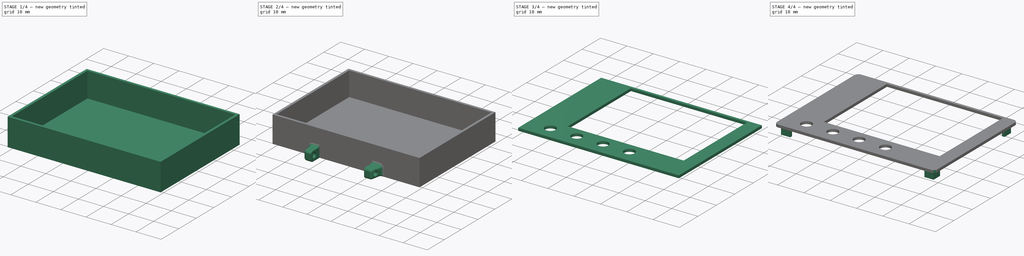
[diagram: build sequence overview — one tinted view per stage of 4, left to right]
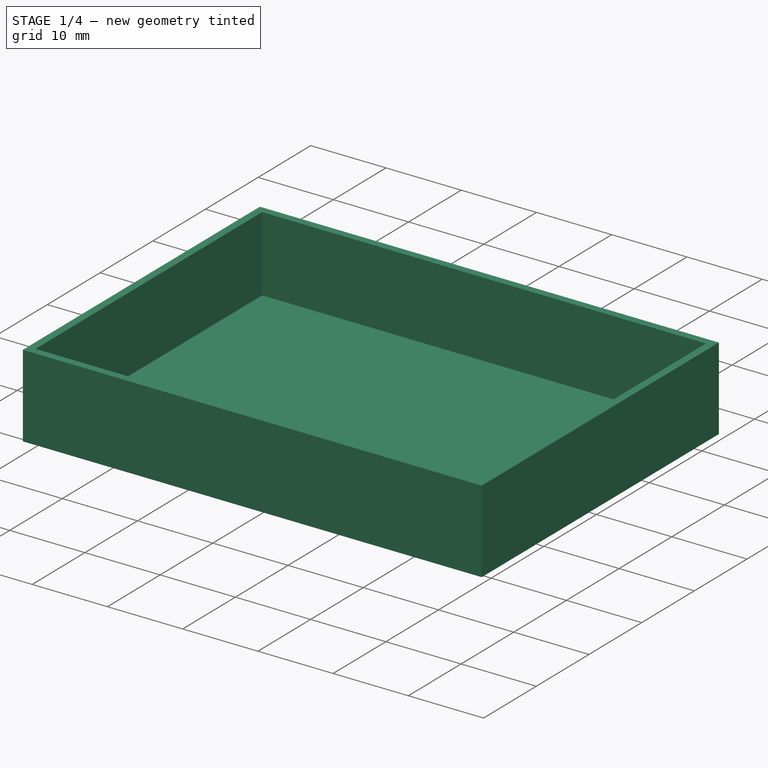
[diagram: stage 1 of 4 — iso view after this stage's code; geometry added in this stage tinted green]
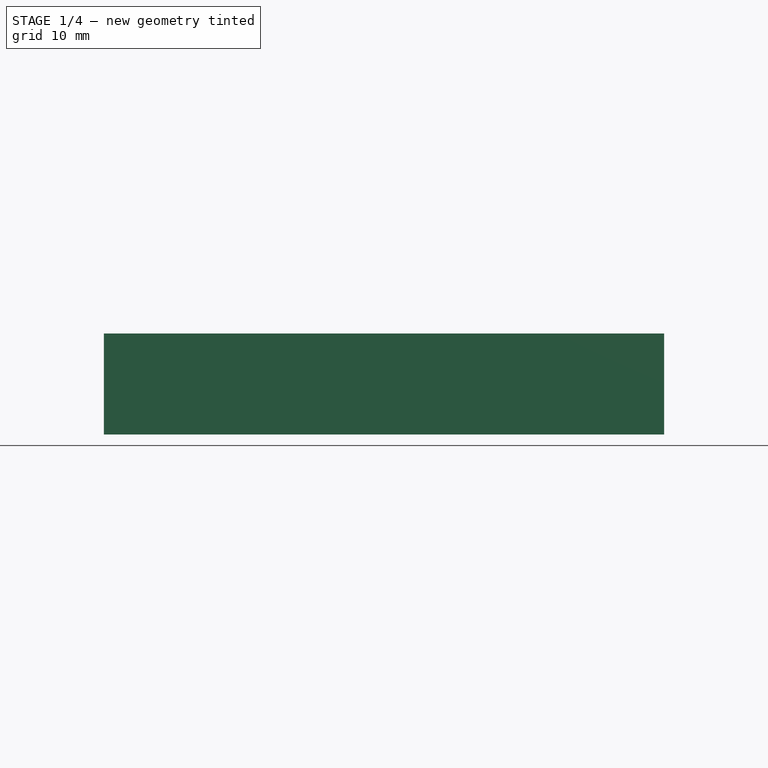
[diagram: stage 1 of 4 — front view after this stage's code; geometry added in this stage tinted green]
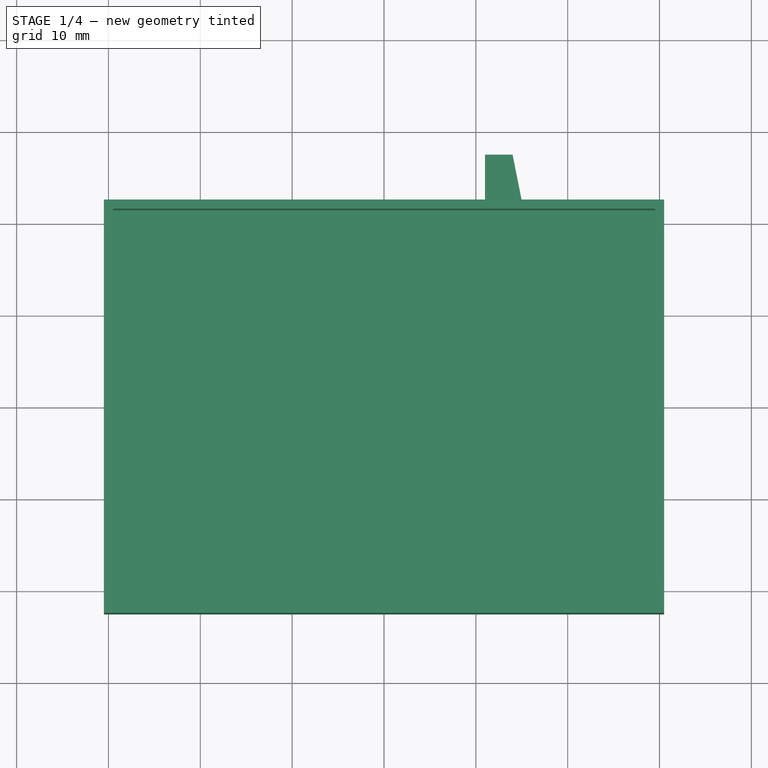
[diagram: stage 1 of 4 — top view after this stage's code; geometry added in this stage tinted green]
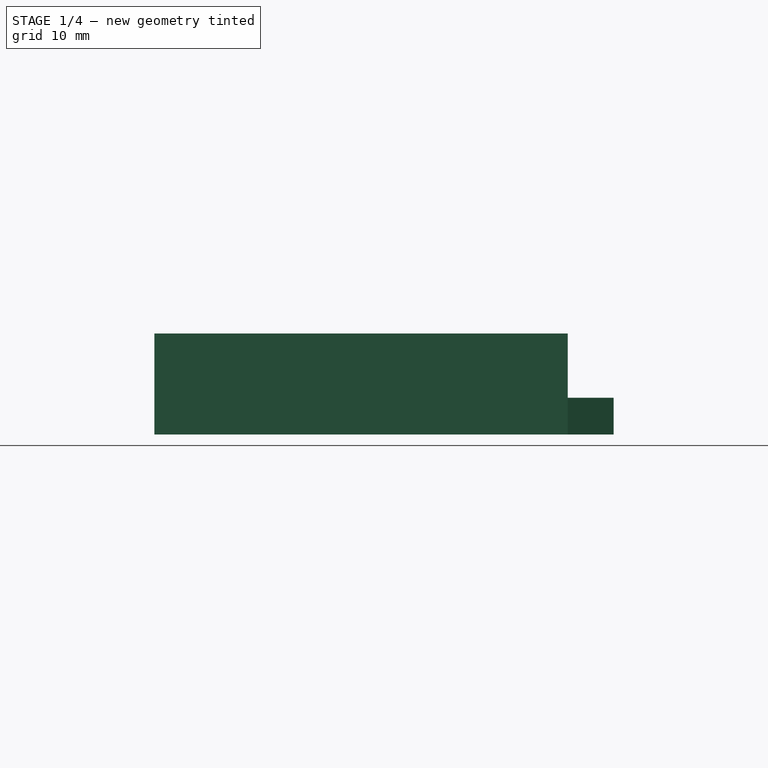
[diagram: stage 1 of 4 — right view after this stage's code; geometry added in this stage tinted green]
FCSTD DOCUMENT  (FreeCAD 1.1RUnknown)
Label: handy
License: All rights reserved
LicenseURL: https://en.wikipedia.org/wiki/All_rights_reserved
objects: Sketcher::SketchObject×5, PartDesign::Pad×5, PartDesign::Mirrored×4, PartDesign::Fillet×3, PartDesign::Pocket×3, App::Point×2, PartDesign::MultiTransform×2, PartDesign::Body×2, PartDesign::SubShapeBinder×1
note: 58 computed .brp shape members not serialized (recipe doc carries the construction recipe); baked Part::Feature solids carry a one-line shape summary decoded from their .brp

FEATURE [App::Point] Origin006
  Role = Origin
FEATURE [Sketcher::SketchObject] Sketch025
  ArcFitTolerance = 1e-06
  AttachmentSupport = -> [Origin005]
  ExternalTypes = [0]
  FullyConstrained = true
  MakeInternals = true
  MapMode = 5
  _ExternalGeoVersion = 1
  sketch-geometry (14):
    g0: LineSegment StartX=-29.5 StartY=21.5 StartZ=0 EndX=-29.5 EndY=-21.5 EndZ=0
    g1: LineSegment StartX=-29.5 StartY=-21.5 StartZ=0 EndX=29.5 EndY=-21.5 EndZ=0
    g2: LineSegment StartX=29.5 StartY=-21.5 StartZ=0 EndX=29.5 EndY=21.5 EndZ=0
    g3: LineSegment StartX=29.5 StartY=21.5 StartZ=0 EndX=-29.5 EndY=21.5 EndZ=0
    g4: LineSegment StartX=-30.5 StartY=-22.5 StartZ=0 EndX=30.5 EndY=-22.5 EndZ=0
    g5: LineSegment StartX=30.5 StartY=-22.5 StartZ=0 EndX=30.5 EndY=22.5 EndZ=0
    g6: LineSegment StartX=-30.5 StartY=22.5 StartZ=0 EndX=-30.5 EndY=-22.5 EndZ=0
    g7: LineSegment [constr] StartX=29.5 StartY=21.5 StartZ=0 EndX=30.5 EndY=21.5 EndZ=0
    g8: LineSegment [constr] StartX=29.5 StartY=21.5 StartZ=0 EndX=29.5 EndY=22.5 EndZ=0
    g9: LineSegment StartX=11 StartY=27.5 StartZ=0 EndX=11 EndY=22.5 EndZ=0
    g10: LineSegment StartX=15 StartY=22.5 StartZ=0 EndX=14 EndY=27.5 EndZ=0
    g11: LineSegment StartX=-30.5 StartY=22.5 StartZ=0 EndX=30.5 EndY=22.5 EndZ=0
    g12: LineSegment StartX=14 StartY=27.5 StartZ=0 EndX=11 EndY=27.5 EndZ=0
    g13: GeomPoint [constr] X=0 Y=0 Z=0
  constraints (39):
    c: Coincident(g1,g2)
    c: Coincident(g2,g3)
    c: Coincident(g3,g0)
    c: Vertical(g0)
    c: Vertical(g2)
    c: Horizontal(g1)
    c: Horizontal(g3)
    c: DistanceX(g1,g1) = 59
    c: DistanceY(g0,g0) = 43
    c: Coincident(g4,g5)
    c: Coincident(g6,g4)
    c: Horizontal(g4)
    c: Vertical(g5)
    c: Vertical(g6)
    c: Coincident(g7,g2)
    c: PointOnObject(g7,g5)
    c: Horizontal(g7)
    c: Coincident(g8,g2)
    c: Vertical(g8)
    c: Equal(g7,g8)
    c: Distance(g7,g7) = 1
    c: Vertical(g9)
    c: Coincident(g11,g6)
    c: Coincident(g11,g5)
    c: Horizontal(g11)
    c: PointOnObject(g8,g11)
    c: PointOnObject(g9,g11)
    c: PointOnObject(g10,g11)
    c: Coincident(g12,g10)
    c: Coincident(g12,g9)
    c: Horizontal(g12)
    c: Distance(g12,g12) = 3
    c: Distance(g10,g9) = 4
    c: Distance(g9,g9) = 5
    c: Symmetric(g0,g1,g13)
    c: Symmetric(g5,g4,g13)
    c: Coincident(g0,g1)
    c: Coincident(g-1,g13)
    c: Distance(g9,g-2) = 11
FEATURE [PartDesign::Pad] Pad015  label="plate"
  Direction = (0,0,1)
  Length = 1
  Length2 = 10
  Profile = -> Sketch025 [InternalFace3]
  ReferenceAxis = -> Sketch025 [N_Axis]
  Refine = true
  SideType = 0
  Suppressed = false
  Type = 0
  Type2 = 0
FEATURE [PartDesign::Pad] Pad016  label="walls"
  BaseFeature = -> Pad015
  Direction = (0,0,1)
  Length = 11
  Length2 = 10
  Profile = -> Sketch025 [edge1,InternalFace1]
  ReferenceAxis = -> Sketch025 [N_Axis]
  Refine = true
  SideType = 0
  Suppressed = false
  Type = 0
  Type2 = 0
FEATURE [PartDesign::Pad] Pad017  label="StrapHand"
  BaseFeature = -> Pad016
  Direction = (0,0,1)
  Length = 4
  Length2 = 10
  Profile = -> Sketch025 [InternalFace2]
  ReferenceAxis = -> Sketch025 [N_Axis]
  Refine = true
  SideType = 0
  Suppressed = false
  Type = 0
  Type2 = 0
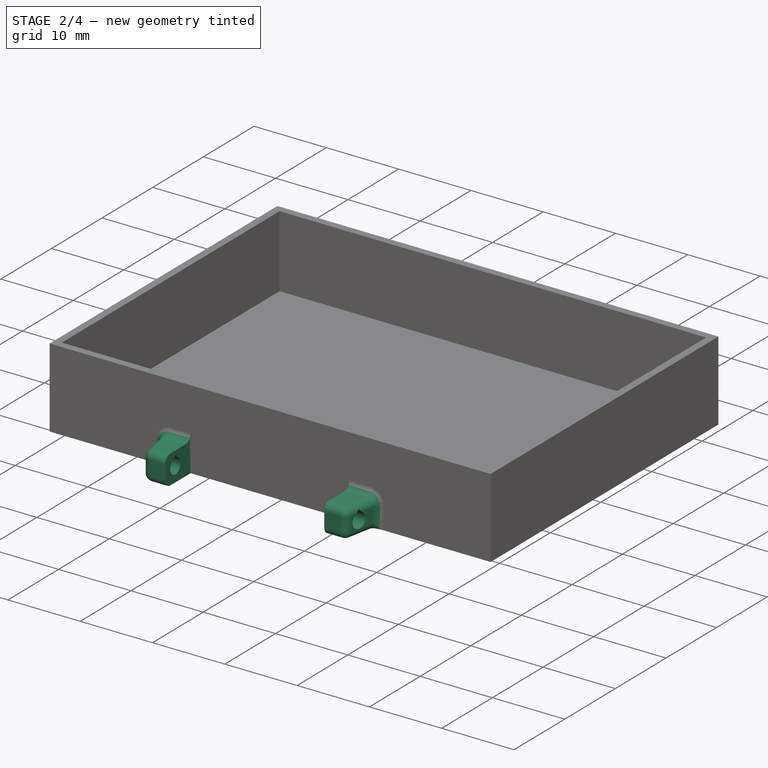
[diagram: stage 2 of 4 — iso view after this stage's code; geometry added in this stage tinted green]
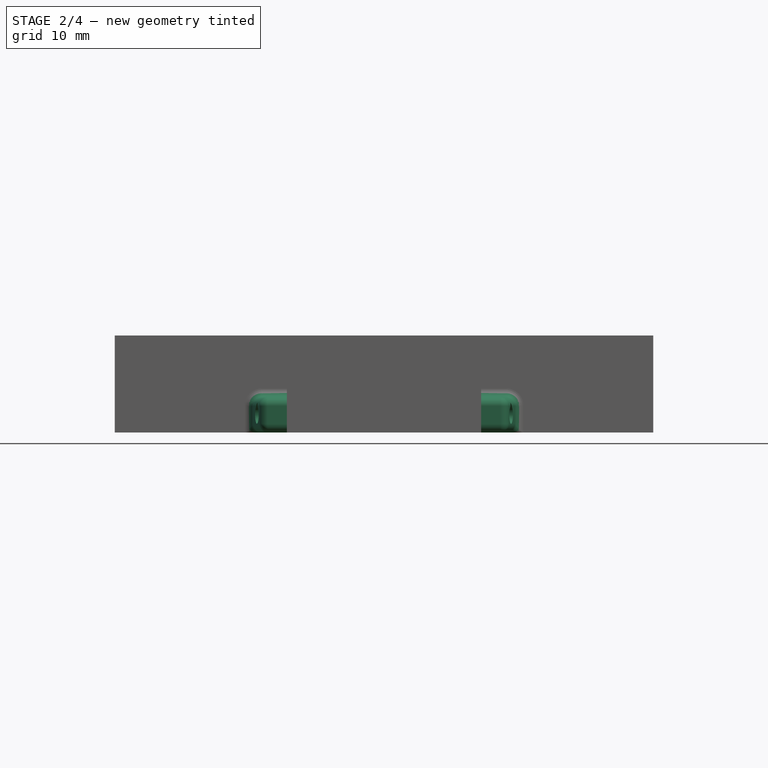
[diagram: stage 2 of 4 — front view after this stage's code; geometry added in this stage tinted green]
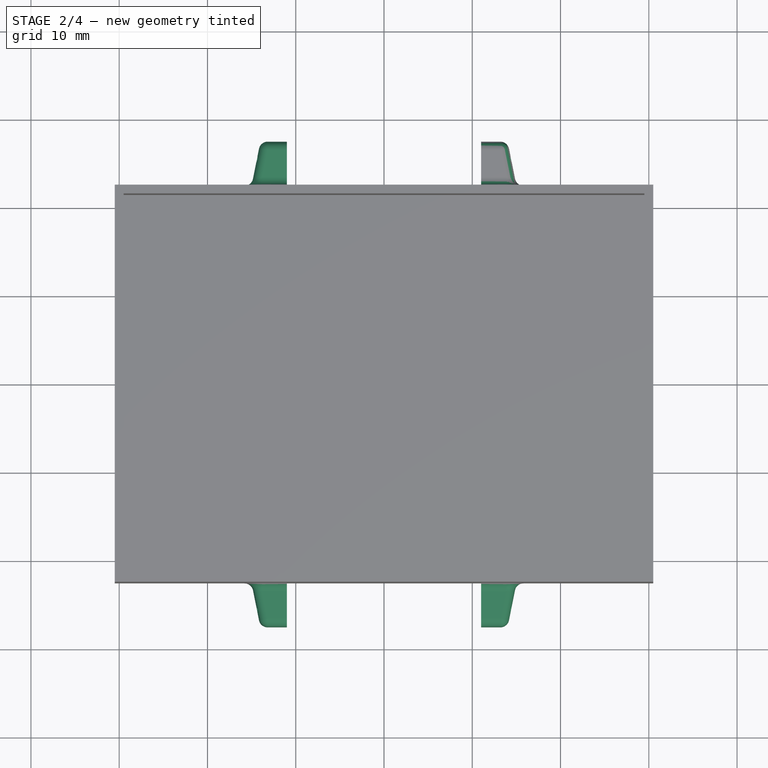
[diagram: stage 2 of 4 — top view after this stage's code; geometry added in this stage tinted green]
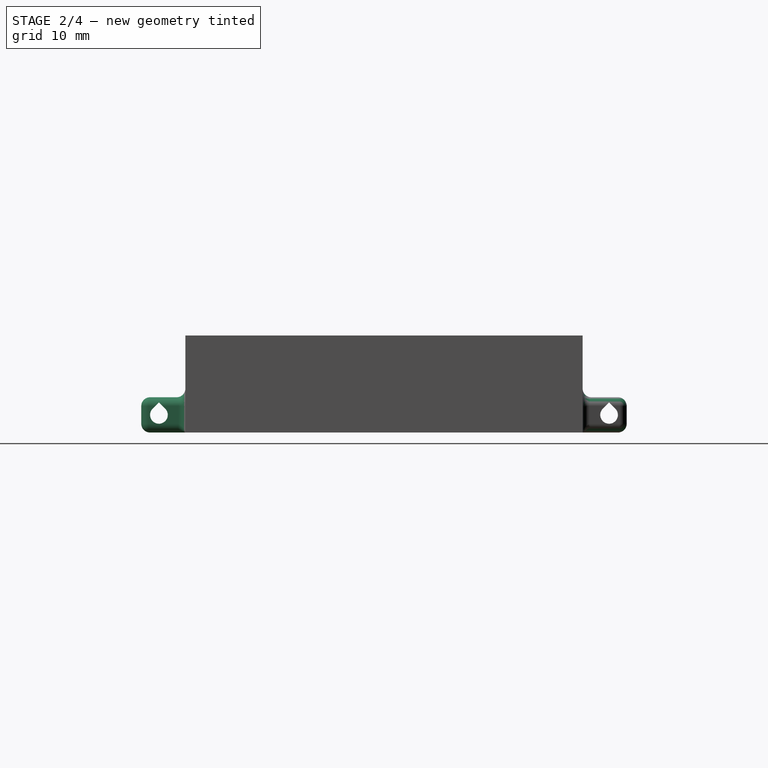
[diagram: stage 2 of 4 — right view after this stage's code; geometry added in this stage tinted green]
FEATURE [PartDesign::Fillet] Fillet006
  Base = -> Pad017 [Edge7,Edge6,Edge24,Edge25,Edge23,Edge26,Edge36]
  BaseFeature = -> Pad017
  Radius = 1
  Refine = true
  SupportTransform = false
  Suppressed = false
  UseAllEdges = false
FEATURE [Sketcher::SketchObject] Sketch026
  ArcFitTolerance = 1e-06
  AttachmentSupport = -> [Pad017]
  ExternalGeometry = -> [Pad017]
  ExternalTypes = [0]
  FullyConstrained = true
  MakeInternals = true
  MapMode = 5
  Placement = pos=(11,0,0) rot=(0.57735,-0.57735,-0.57735;2.0944rad)
  _ExternalGeoVersion = 1
  sketch-geometry (5):
    g0: LineSegment [constr] StartX=-25.5 StartY=2 StartZ=0 EndX=-25.5 EndY=4 EndZ=0
    g1: ArcOfCircle CenterX=-25.5 CenterY=2 CenterZ=0 NormalX=0 NormalY=0 NormalZ=1 AngleXU=0 Radius=1 StartAngle=2.35619 EndAngle=7.06858
    g2: LineSegment StartX=-26.2071 StartY=2.70711 StartZ=0 EndX=-25.5 EndY=3.41421 EndZ=0
    g3: LineSegment StartX=-25.5 StartY=3.41421 StartZ=0 EndX=-24.7929 EndY=2.70711 EndZ=0
    g4: LineSegment [constr] StartX=-27.5 StartY=2 StartZ=0 EndX=-25.5 EndY=2 EndZ=0
  constraints (13):
    c: Vertical(g0)
    c: PointOnObject(g0,g-6)
    c: Coincident(g1,g0)
    c: Coincident(g3,g2)
    c: Tangent(g1,g3) = 1.5708
    c: Tangent(g1,g2) = 1.5708
    c: PointOnObject(g2,g0)
    c: Radius(g1) = 1
    c: Perpendicular(g2,g3)
    c: Symmetric(g-3,g-3,g4)
    c: Coincident(g4,g0)
    c: Horizontal(g4)
    c: Equal(g4,g0)
FEATURE [PartDesign::Pocket] Pocket005  label="StrapHole"
  BaseFeature = -> Fillet006
  Direction = (1,0,0)
  Length = 5
  Length2 = 5
  Profile = -> Sketch026
  ReferenceAxis = -> Sketch026 [N_Axis]
  Refine = true
  SideType = 0
  Suppressed = false
  Type = 2
  Type2 = 0
FEATURE [PartDesign::Mirrored] Mirror
  MirrorPlane = -> Sketch025 [V_Axis]
  Refine = true
  Suppressed = false
  TransformMode = 0
FEATURE [PartDesign::Mirrored] Mirror001
  MirrorPlane = -> Sketch025 [H_Axis]
  Refine = true
  Suppressed = false
  TransformMode = 0
FEATURE [PartDesign::MultiTransform] MultiTransform001  label="StrapHands001"
  BaseFeature = -> Pocket005
  Originals = -> [Pad017,Fillet006,Pocket005]
  Refine = true
  Suppressed = false
  TransformMode = 0
  Transformations = -> [Mirror,Mirror001]
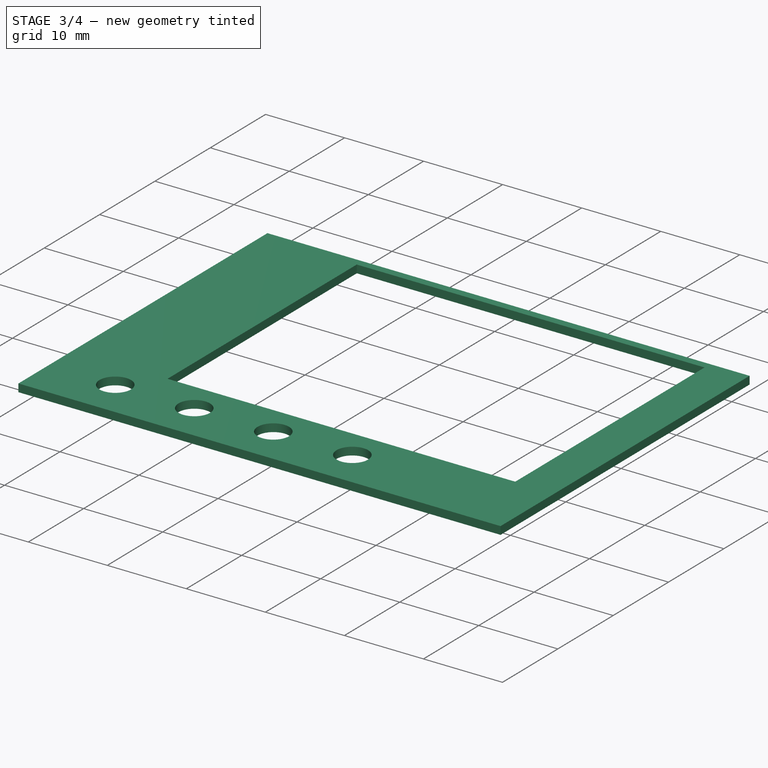
[diagram: stage 3 of 4 — iso view after this stage's code; geometry added in this stage tinted green]
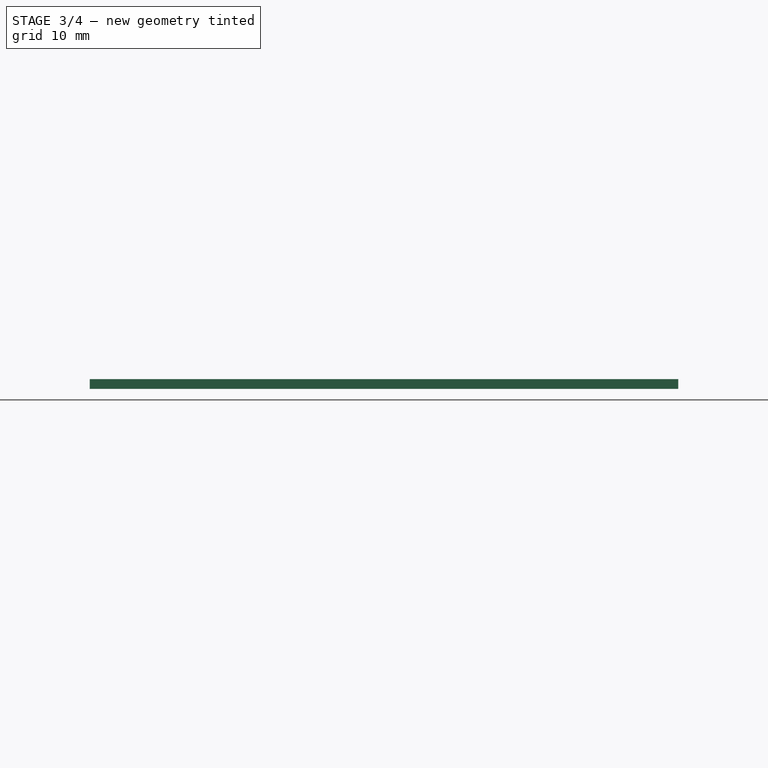
[diagram: stage 3 of 4 — front view after this stage's code; geometry added in this stage tinted green]
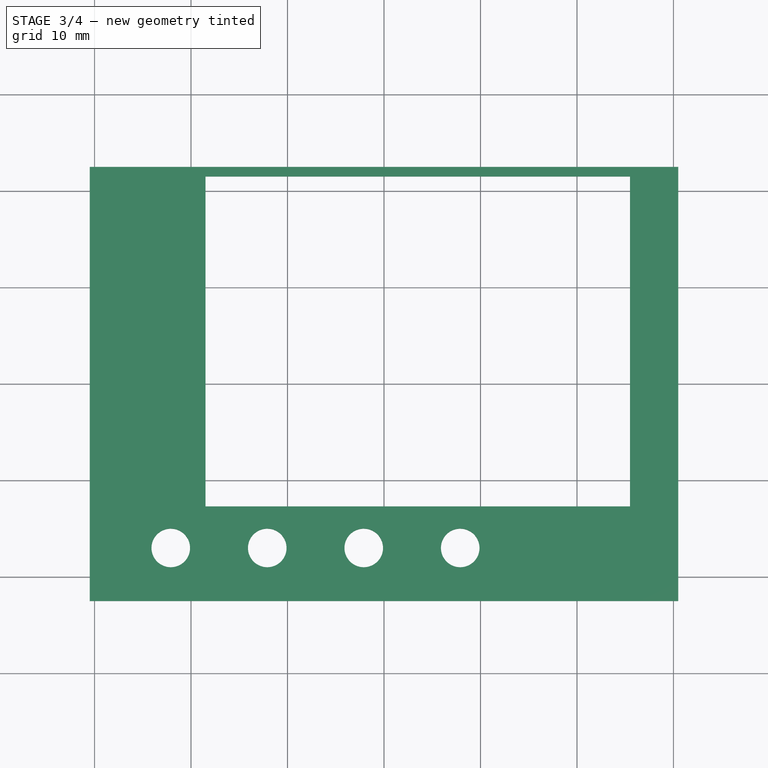
[diagram: stage 3 of 4 — top view after this stage's code; geometry added in this stage tinted green]
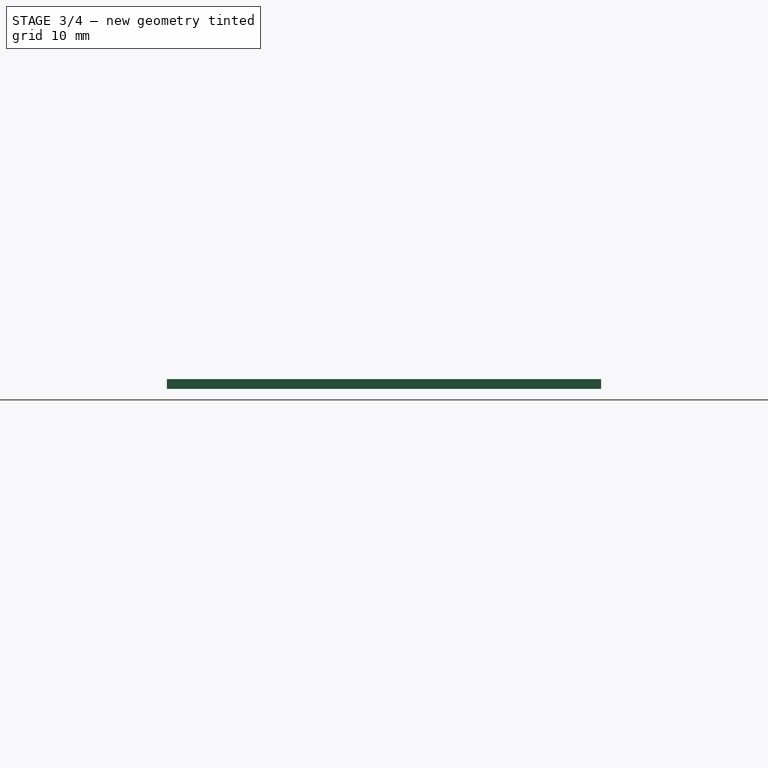
[diagram: stage 3 of 4 — right view after this stage's code; geometry added in this stage tinted green]
FEATURE [Sketcher::SketchObject] Sketch027
  ArcFitTolerance = 1e-06
  AttachmentSupport = -> [Pad016]
  ExternalGeometry = -> [MultiTransform001]
  ExternalTypes = [0,0]
  FullyConstrained = true
  MakeInternals = true
  MapMode = 5
  Placement = pos=(30.5,0,0) rot=(0.57735,0.57735,0.57735;2.0944rad)
  _ExternalGeoVersion = 1
  sketch-geometry (5):
    g0: LineSegment StartX=-17 StartY=8.25 StartZ=0 EndX=-12 EndY=8.25 EndZ=0
    g1: LineSegment StartX=-12 StartY=8.25 StartZ=0 EndX=-12 EndY=11.75 EndZ=0
    g2: LineSegment StartX=-12 StartY=11.75 StartZ=0 EndX=-17 EndY=11.75 EndZ=0
    g3: LineSegment StartX=-17 StartY=11.75 StartZ=0 EndX=-17 EndY=8.25 EndZ=0
    g4: GeomPoint [constr] X=-14.5 Y=10 Z=0
  constraints (13):
    c: Coincident(g0,g1)
    c: Coincident(g1,g2)
    c: Coincident(g2,g3)
    c: Coincident(g3,g0)
    c: Horizontal(g0)
    c: Horizontal(g2)
    c: Vertical(g1)
    c: Vertical(g3)
    c: Symmetric(g2,g0,g4)
    c: Distance(g1,g3) = 5
    c: Distance(g0,g2) = 3.5
    c: DistanceX(g-3,g4) = 7
    c: Distance(g4,g-3) = 9
FEATURE [PartDesign::Pocket] Pocket006  label="Jumper"
  BaseFeature = -> MultiTransform001
  Direction = (-1,0,0)
  Length = 5
  Length2 = 5
  Profile = -> Sketch027
  ReferenceAxis = -> Sketch027 [N_Axis]
  Refine = true
  SideType = 0
  Suppressed = false
  Type = 2
  Type2 = 0
FEATURE [Sketcher::SketchObject] Sketch028
  ArcFitTolerance = 1e-06
  AttachmentSupport = -> [Pad016]
  ExternalGeometry = -> [Pad016]
  ExternalTypes = [0]
  FullyConstrained = true
  MakeInternals = true
  MapMode = 5
  Placement = pos=(-30.5,0,0) rot=(0.57735,-0.57735,-0.57735;2.0944rad)
  _ExternalGeoVersion = 1
  sketch-geometry (5):
    g0: LineSegment StartX=-14.25 StartY=1 StartZ=0 EndX=-2.75 EndY=1 EndZ=0
    g1: LineSegment StartX=-2.75 StartY=1 StartZ=0 EndX=-2.75 EndY=5.5 EndZ=0
    g2: LineSegment StartX=-2.75 StartY=5.5 StartZ=0 EndX=-14.25 EndY=5.5 EndZ=0
    g3: LineSegment StartX=-14.25 StartY=5.5 StartZ=0 EndX=-14.25 EndY=1 EndZ=0
    g4: GeomPoint [constr] X=-8.5 Y=3.25 Z=0
  constraints (13):
    c: Coincident(g0,g1)
    c: Coincident(g1,g2)
    c: Coincident(g2,g3)
    c: Coincident(g3,g0)
    c: Horizontal(g0)
    c: Horizontal(g2)
    c: Vertical(g1)
    c: Vertical(g3)
    c: Symmetric(g2,g0,g4)
    c: Distance(g1,g3) = 11.5
    c: Distance(g0,g2) = 4.5
    c: PointOnObject(g0,g-3)
    c: DistanceX(g-3,g4) = 13
FEATURE [PartDesign::Pocket] Pocket007  label="USB"
  BaseFeature = -> Pocket006
  Direction = (1,0,0)
  Length = 5
  Length2 = 5
  Profile = -> Sketch028
  ReferenceAxis = -> Sketch028 [N_Axis]
  Refine = true
  SideType = 0
  Suppressed = false
  Type = 2
  Type2 = 0
FEATURE [PartDesign::Fillet] Fillet007
  Base = -> Pocket007 [Edge76,Edge78,Edge100,Edge91]
  BaseFeature = -> Pocket007
  Radius = 1.5
  Refine = true
  SupportTransform = false
  Suppressed = false
  UseAllEdges = false
FEATURE [PartDesign::Body] Body003  label="Box"
  AllowCompound = true
  Group = -> [Sketch025,Pad015,Pad016,Pad017,Fillet006,Sketch026,Pocket005,MultiTransform001,Mirror,Mirror001,Sketch027,Pocket006,Sketch028,Pocket007,Fillet007]
  Origin = -> Origin005
  Tip = -> Fillet007
FEATURE [App::Point] Origin008  label="Origin009"
  Role = Origin
FEATURE [PartDesign::SubShapeBinder] Binder001
  BindCopyOnChange = 0
  BindMode = 0
  ClaimChildren = false
  Context = -> Body004 [Binder001.]
  Fuse = false
  MakeFace = true
  OffsetFill = false
  OffsetIntersection = false
  OffsetJoinType = 0
  OffsetOpenResult = false
  PartialLoad = false
  Refine = true
  Relative = true
  Support = -> [Body003[Pad016.Face5]]
  _Version = 2
FEATURE [Sketcher::SketchObject] Sketch
  ArcFitTolerance = 1e-06
  AttachmentSupport = -> [Binder001]
  ExternalGeometry = -> [Binder001]
  ExternalTypes = [0]
  FullyConstrained = true
  MakeInternals = true
  MapMode = 5
  Placement = pos=(0,0,11) rot=(0,0,1;0rad)
  _ExternalGeoVersion = 1
  sketch-geometry (19):
    g0: LineSegment StartX=-18.5 StartY=21.5 StartZ=0 EndX=-18.5 EndY=-12.7 EndZ=0
    g1: LineSegment StartX=-18.5 StartY=-12.7 StartZ=0 EndX=25.5 EndY=-12.7 EndZ=0
    g2: LineSegment StartX=25.5 StartY=-12.7 StartZ=0 EndX=25.5 EndY=21.5 EndZ=0
    g3: LineSegment StartX=25.5 StartY=21.5 StartZ=0 EndX=-18.5 EndY=21.5 EndZ=0
    g4: Circle CenterX=-22.1 CenterY=-17 CenterZ=0 NormalX=0 NormalY=0 NormalZ=1 AngleXU=0 Radius=2
    g5: Circle CenterX=-12.1 CenterY=-17 CenterZ=0 NormalX=0 NormalY=0 NormalZ=1 AngleXU=0 Radius=2
    g6: Circle CenterX=-2.1 CenterY=-17 CenterZ=0 NormalX=0 NormalY=0 NormalZ=1 AngleXU=0 Radius=2
    g7: Circle CenterX=7.9 CenterY=-17 CenterZ=0 NormalX=0 NormalY=0 NormalZ=1 AngleXU=0 Radius=2
    g8: LineSegment [constr] StartX=-22.1 StartY=-17 StartZ=0 EndX=-12.1 EndY=-17 EndZ=0
    g9: LineSegment [constr] StartX=-12.1 StartY=-17 StartZ=0 EndX=-2.1 EndY=-17 EndZ=0
    g10: LineSegment [constr] StartX=-2.1 StartY=-17 StartZ=0 EndX=7.9 EndY=-17 EndZ=0
    g11: LineSegment StartX=28 StartY=-17.5 StartZ=0 EndX=29 EndY=-17.5 EndZ=0
    g12: LineSegment StartX=29 StartY=-17.5 StartZ=0 EndX=29 EndY=-21 EndZ=0
    g13: LineSegment StartX=29 StartY=-21 StartZ=0 EndX=25.5 EndY=-21 EndZ=0
    g14: LineSegment StartX=25.5 StartY=-21 StartZ=0 EndX=25.5 EndY=-20 EndZ=0
    g15: LineSegment StartX=25.5 StartY=-20 StartZ=0 EndX=28 EndY=-20 EndZ=0
    g16: LineSegment StartX=28 StartY=-20 StartZ=0 EndX=28 EndY=-17.5 EndZ=0
    g17: LineSegment [constr] StartX=29 StartY=-21 StartZ=0 EndX=29 EndY=-21.5 EndZ=0
    g18: LineSegment [constr] StartX=29 StartY=-21 StartZ=0 EndX=29.5 EndY=-21 EndZ=0
  constraints (54):
    c: Coincident(g0,g1)
    c: Coincident(g1,g2)
    c: Coincident(g2,g3)
    c: Coincident(g3,g0)
    c: Vertical(g0)
    c: Vertical(g2)
    c: Horizontal(g1)
    c: Horizontal(g3)
    c: Distance(g0,g2) = 44
    c: Distance(g1,g3) = 34.2
    c: Distance(g-10,g2) = 4
    c: PointOnObject(g2,g-7)
    c: Equal(g4,g5)
    c: Equal(g5,g6)
    c: Equal(g6,g7)
    c: Coincident(g8,g4)
    c: Coincident(g8,g5)
    c: Horizontal(g8)
    c: Coincident(g9,g5)
    c: Coincident(g9,g6)
    c: Coincident(g10,g6)
    c: Coincident(g10,g7)
    c: Horizontal(g9)
    c: Horizontal(g10)
    c: Equal(g10,g9)
    c: Equal(g9,g8)
    c: Distance(g8,g8) = 10
    c: Diameter(g7) = 4
    c: Distance(g4,g-8) = 7.4
    c: Distance(g-9,g8) = 4.5
    c: Horizontal(g11)
    c: Coincident(g11,g12)
    c: Vertical(g12)
    c: Coincident(g12,g13)
    c: Horizontal(g13)
    c: Coincident(g13,g14)
    c: Coincident(g14,g15)
    c: Coincident(g15,g16)
    c: Coincident(g16,g11)
    c: Vertical(g16)
    c: Horizontal(g15)
    c: Vertical(g14)
    c: Equal(g14,g11)
    c: Equal(g15,g16)
    c: Coincident(g17,g12)
    c: PointOnObject(g17,g-9)
    c: Vertical(g17)
    c: Coincident(g18,g12)
    c: Horizontal(g18)
    c: PointOnObject(g18,g-10)
    c: Equal(g18,g17)
    c: Distance(g18,g18) = 0.5
    c: Distance(g11,g11) = 1
    c: Distance(g12,g12) = 3.5
FEATURE [PartDesign::Pad] Pad
  Direction = (0,0,1)
  Length = 1
  Length2 = 10
  Profile = -> Sketch [InternalFace1,InternalFace7]
  ReferenceAxis = -> Sketch [N_Axis]
  Refine = true
  SideType = 0
  Suppressed = false
  Type = 0
  Type2 = 0
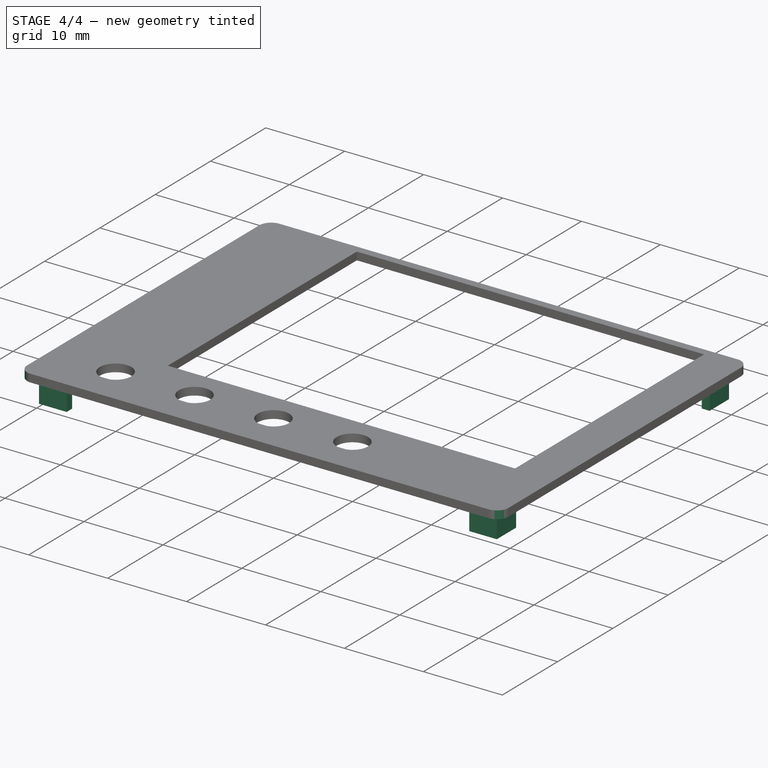
[diagram: stage 4 of 4 — iso view after this stage's code; geometry added in this stage tinted green]
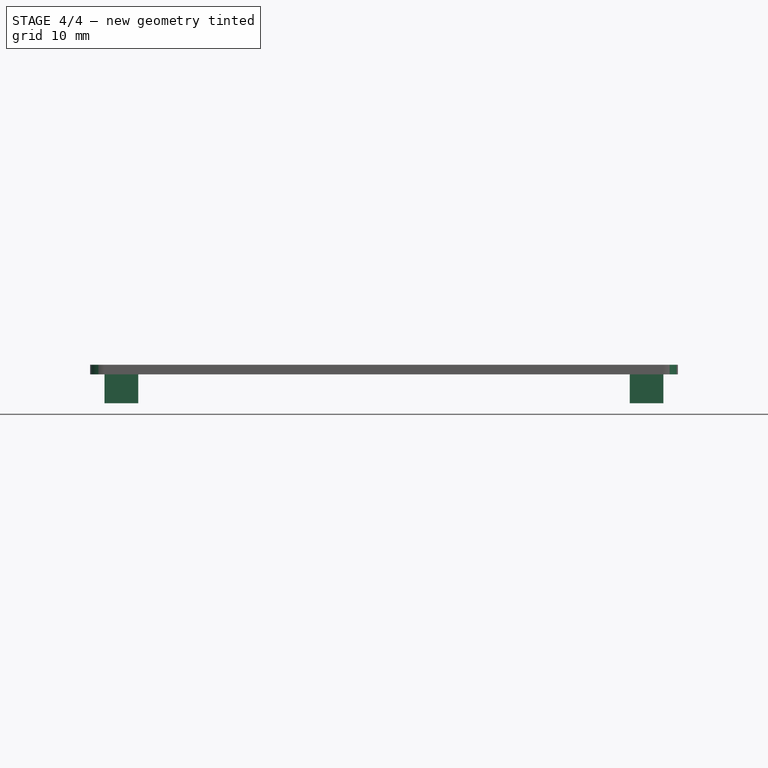
[diagram: stage 4 of 4 — front view after this stage's code; geometry added in this stage tinted green]
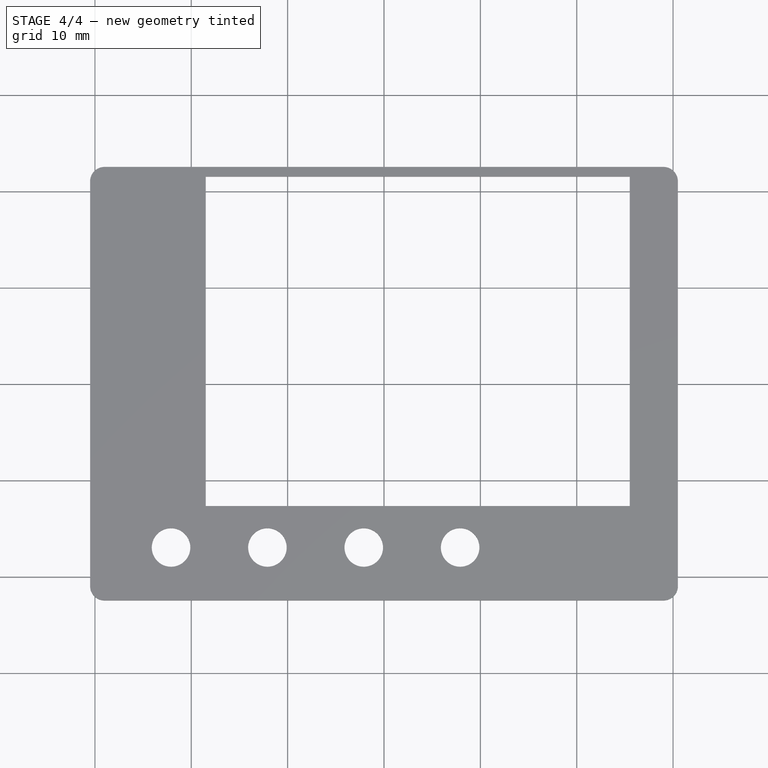
[diagram: stage 4 of 4 — top view after this stage's code; geometry added in this stage tinted green]
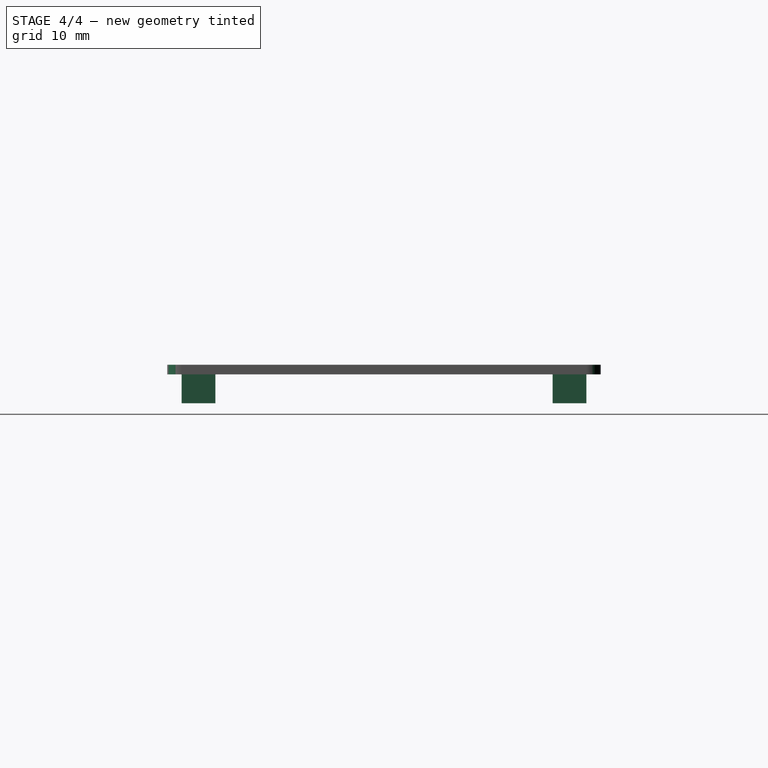
[diagram: stage 4 of 4 — right view after this stage's code; geometry added in this stage tinted green]
FEATURE [PartDesign::Fillet] Fillet
  Base = -> Pad [Edge1,Vertex3,Edge2,Edge5,Edge8]
  BaseFeature = -> Pad
  Radius = 1.5
  Refine = true
  SupportTransform = false
  Suppressed = false
  UseAllEdges = false
FEATURE [PartDesign::Pad] Pad018  label="Connector"
  BaseFeature = -> Fillet
  Direction = (0,0,1)
  Length = 3
  Length2 = 10
  Profile = -> Sketch [InternalFace7]
  ReferenceAxis = -> Sketch [N_Axis]
  Refine = true
  Reversed = true
  SideType = 0
  Suppressed = false
  Type = 0
  Type2 = 0
FEATURE [PartDesign::Mirrored] Mirror002
  MirrorPlane = -> Sketch [V_Axis]
  Refine = true
  Suppressed = false
  TransformMode = 0
FEATURE [PartDesign::Mirrored] Mirror003
  MirrorPlane = -> Sketch [H_Axis]
  Refine = true
  Suppressed = false
  TransformMode = 0
FEATURE [PartDesign::MultiTransform] MultiTransform002
  BaseFeature = -> Pad018
  Originals = -> [Pad018]
  Refine = true
  Suppressed = false
  TransformMode = 0
  Transformations = -> [Mirror002,Mirror003]
FEATURE [PartDesign::Body] Body004  label="Lid"
  AllowCompound = true
  Group = -> [Binder001,Sketch,Pad,Fillet,Pad018,MultiTransform002,Mirror002,Mirror003]
  Origin = -> Origin007
  Tip = -> MultiTransform002
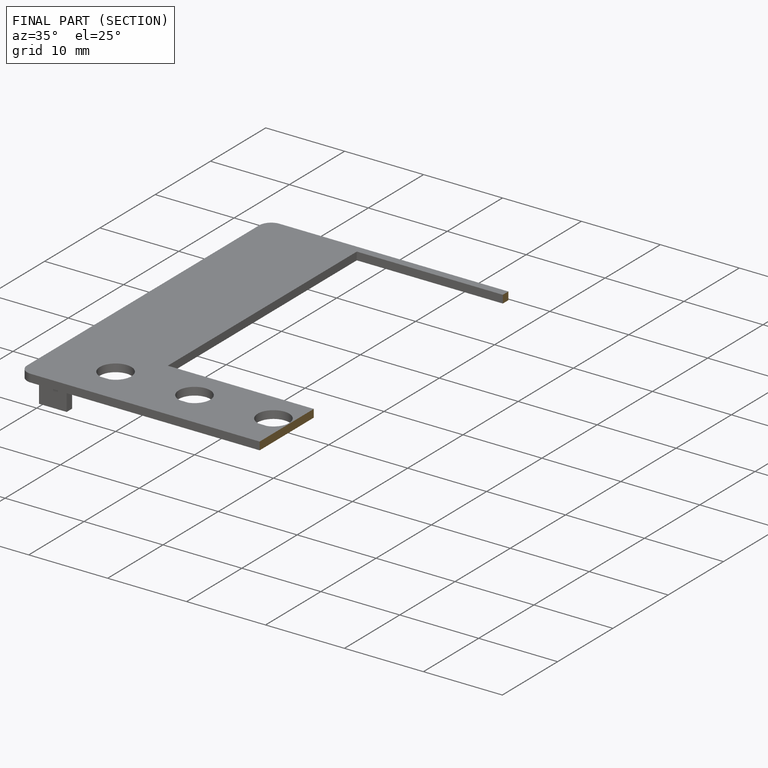
[diagram: finished part — half-section view (interior)]
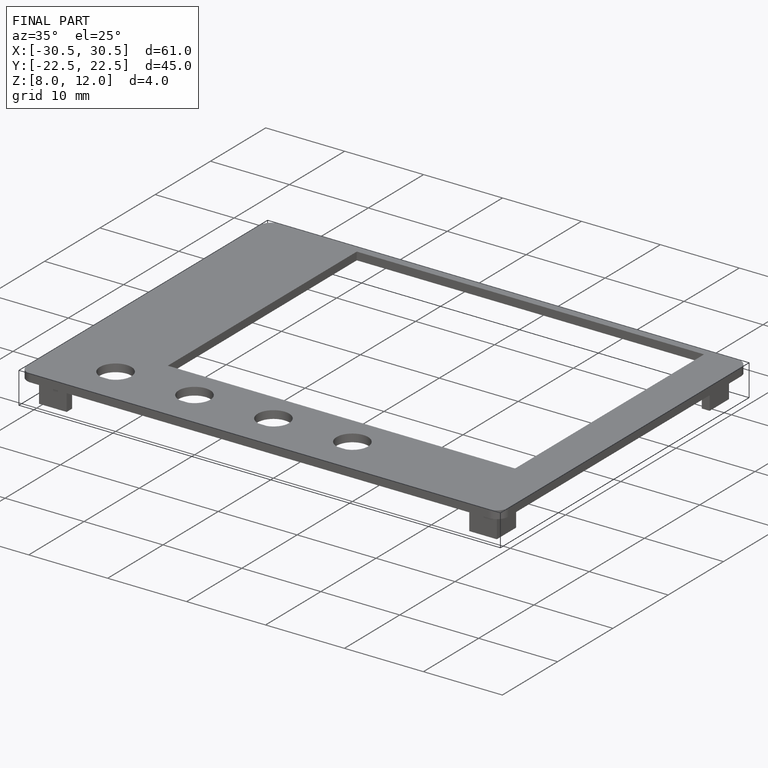
[diagram: finished part — iso view with bounding-box wireframe]
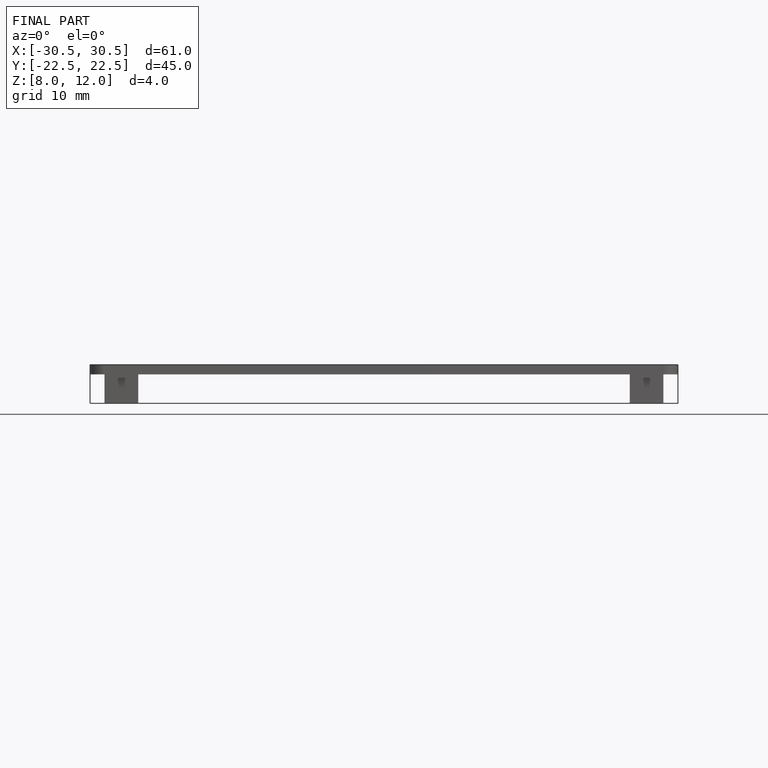
[diagram: finished part — front view with bounding-box wireframe]
